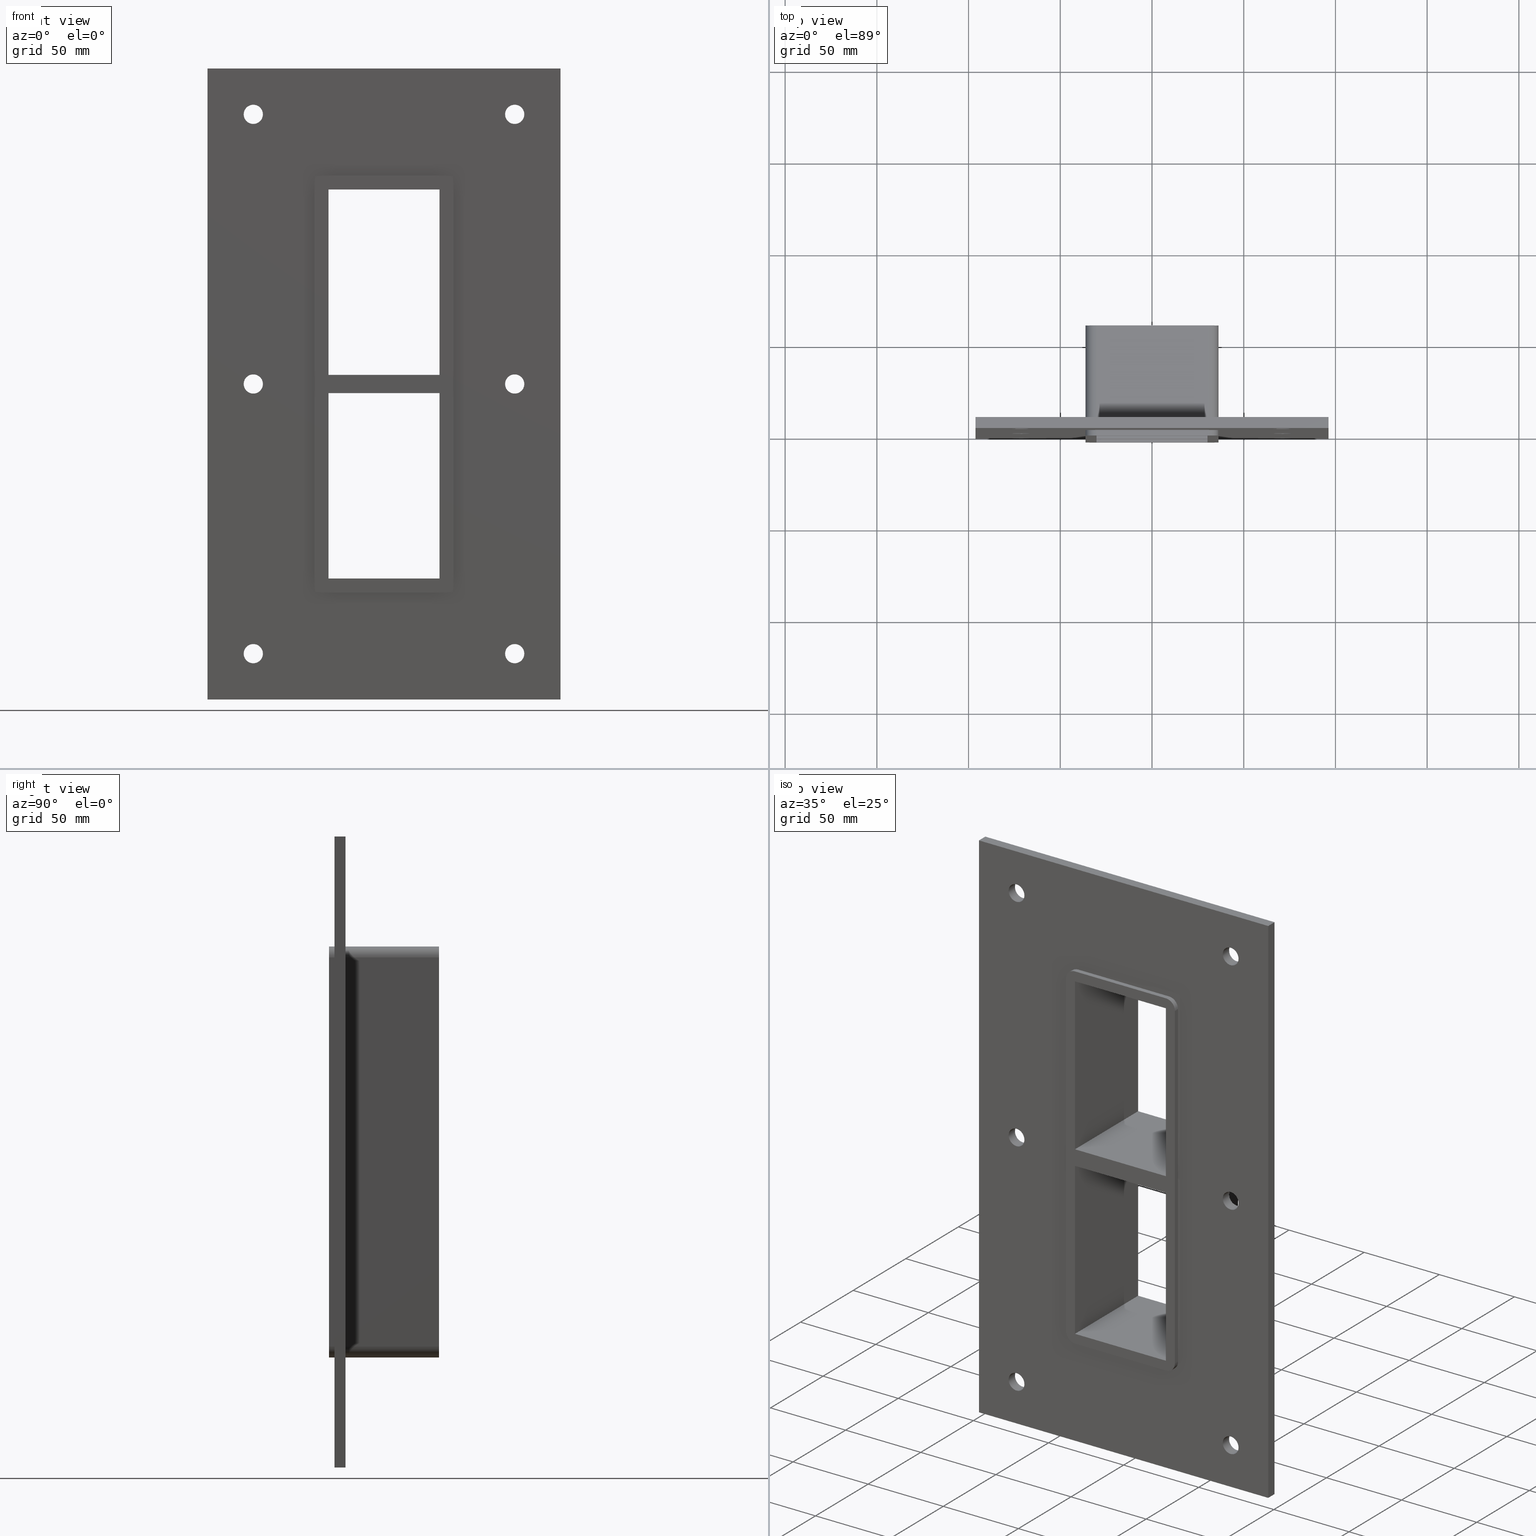
[diagram: canonical four-view strip — front | top / right | iso, engineering-drawing reading convention]
A machine part, canonical four-view strip (front | top / right | iso — engineering-drawing reading convention). The complete STEP part file that produces these views, byte-faithful:
ISO-10303-21;
HEADER;
/****************************************************************
 * Generated by software with PDElib inside                    *
 * PDElib Version v51a, created Wed 11/30/2011                  *
 * ITI Transcendata (http://www.transcendata.com/)              *
 ****************************************************************/
FILE_DESCRIPTION((''),'2;1');
FILE_NAME('L:\\roxtec-se\\Projects\\Ongoing_Projects\\12403 Transit Designer\\Product-data\\Product Data\\Reviwed & Approved\\Review\\GH\\STEP\\GH1+1X1.stp','2015-02-20T10:52:43',('se-emikul'),(''),'Autodesk Inventor 2013','Autodesk Inventor 2013','');
FILE_SCHEMA(('AUTOMOTIVE_DESIGN { 1 0 10303 214 1 1 1 1 }'));
ENDSEC;
DATA;
#5=APPLICATION_CONTEXT('automotive design');
#6=APPLICATION_PROTOCOL_DEFINITION('International Standard','automotive_design',2001,#5);
#7=PRODUCT_CONTEXT('',#5,'mechanical');
#8=PRODUCT('GH1+1X1','GH1+1X1',$,(#7));
#9=PRODUCT_RELATED_PRODUCT_CATEGORY('part',$,(#8));
#10=PRODUCT_DEFINITION_FORMATION('',$,#8);
#11=PRODUCT_DEFINITION_CONTEXT('part definition',#5,'design');
#12=PRODUCT_DEFINITION('',$,#10,#11);
#18=(NAMED_UNIT(*)PLANE_ANGLE_UNIT()SI_UNIT($,.RADIAN.));
#19=DIMENSIONAL_EXPONENTS(0.0,0.0,0.0,0.0,0.0,0.0,0.0);
#20=PLANE_ANGLE_MEASURE_WITH_UNIT(PLANE_ANGLE_MEASURE(0.0174532925),#18);
#24=(CONVERSION_BASED_UNIT('DEGREE',#20)NAMED_UNIT(#19)PLANE_ANGLE_UNIT());
#28=(NAMED_UNIT(*)SI_UNIT($,.STERADIAN.)SOLID_ANGLE_UNIT());
#32=(LENGTH_UNIT()NAMED_UNIT(*)SI_UNIT(.MILLI.,.METRE.));
#34=UNCERTAINTY_MEASURE_WITH_UNIT(LENGTH_MEASURE(0.01),#32,'DISTANCE_ACCURACY_VALUE','');
#36=(GEOMETRIC_REPRESENTATION_CONTEXT(3)GLOBAL_UNCERTAINTY_ASSIGNED_CONTEXT((#34))GLOBAL_UNIT_ASSIGNED_CONTEXT((#24,#28,#32))REPRESENTATION_CONTEXT('None','None'));
#37=AXIS2_PLACEMENT_3D('',#38,#39,#40);
#38=CARTESIAN_POINT('',(0.0,0.0,0.0));
#39=DIRECTION('',(0.0,0.0,1.0));
#40=DIRECTION('',(1.0,0.0,0.0));
#41=SHAPE_REPRESENTATION('',(#37),#36);
#42=PRODUCT_DEFINITION_SHAPE('','',#12);
#43=SHAPE_DEFINITION_REPRESENTATION(#42,#41);
#49=(NAMED_UNIT(*)PLANE_ANGLE_UNIT()SI_UNIT($,.RADIAN.));
#50=DIMENSIONAL_EXPONENTS(0.0,0.0,0.0,0.0,0.0,0.0,0.0);
#51=PLANE_ANGLE_MEASURE_WITH_UNIT(PLANE_ANGLE_MEASURE(0.0174532925),#49);
#55=(CONVERSION_BASED_UNIT('DEGREE',#51)NAMED_UNIT(#50)PLANE_ANGLE_UNIT());
#59=(NAMED_UNIT(*)SI_UNIT($,.STERADIAN.)SOLID_ANGLE_UNIT());
#63=(LENGTH_UNIT()NAMED_UNIT(*)SI_UNIT(.MILLI.,.METRE.));
#65=UNCERTAINTY_MEASURE_WITH_UNIT(LENGTH_MEASURE(0.000001),#63,'DISTANCE_ACCURACY_VALUE','');
#67=(GEOMETRIC_REPRESENTATION_CONTEXT(3)GLOBAL_UNCERTAINTY_ASSIGNED_CONTEXT((#65))GLOBAL_UNIT_ASSIGNED_CONTEXT((#55,#59,#63))REPRESENTATION_CONTEXT('','3D'));
#68=CARTESIAN_POINT('',(-71.250000000000071,398.73832271302933,-147.0));
#69=DIRECTION('',(0.0,-1.0,0.0));
#70=DIRECTION('',(1.0,0.0,0.0));
#71=AXIS2_PLACEMENT_3D('',#68,#69,#70);
#72=CYLINDRICAL_SURFACE('',#71,5.25);
#73=CARTESIAN_POINT('',(-76.500000000000071,6.000000000000014,-147.0));
#74=VERTEX_POINT('',#73);
#75=CARTESIAN_POINT('',(-71.250000000000071,6.000000000000014,-147.0));
#76=DIRECTION('',(0.0,-1.0,0.0));
#77=DIRECTION('',(1.0,0.0,0.0));
#78=AXIS2_PLACEMENT_3D('',#75,#76,#77);
#79=CIRCLE('',#78,5.25);
#80=EDGE_CURVE('',#74,#74,#79,.T.);
#81=ORIENTED_EDGE('',*,*,#80,.F.);
#82=EDGE_LOOP('',(#81));
#83=FACE_OUTER_BOUND('',#82,.T.);
#84=CARTESIAN_POINT('',(-66.000000000000071,0.0,-147.0));
#85=VERTEX_POINT('',#84);
#86=CARTESIAN_POINT('',(-71.250000000000071,0.0,-147.0));
#87=DIRECTION('',(0.0,1.0,0.0));
#88=DIRECTION('',(1.0,0.0,0.0));
#89=AXIS2_PLACEMENT_3D('',#86,#87,#88);
#90=CIRCLE('',#89,5.25);
#91=EDGE_CURVE('',#85,#85,#90,.T.);
#92=ORIENTED_EDGE('',*,*,#91,.F.);
#93=EDGE_LOOP('',(#92));
#94=FACE_BOUND('',#93,.T.);
#95=ADVANCED_FACE('',(#83,#94),#72,.F.);
#96=CARTESIAN_POINT('',(71.249999999999929,398.73832271302933,1.776357E-014));
#97=DIRECTION('',(0.0,-1.0,0.0));
#98=DIRECTION('',(1.0,0.0,0.0));
#99=AXIS2_PLACEMENT_3D('',#96,#97,#98);
#100=CYLINDRICAL_SURFACE('',#99,5.25);
#101=CARTESIAN_POINT('',(65.999999999999929,6.000000000000014,1.776357E-014));
#102=VERTEX_POINT('',#101);
#103=CARTESIAN_POINT('',(71.249999999999929,6.000000000000014,1.776357E-014));
#104=DIRECTION('',(0.0,-1.0,0.0));
#105=DIRECTION('',(1.0,0.0,0.0));
#106=AXIS2_PLACEMENT_3D('',#103,#104,#105);
#107=CIRCLE('',#106,5.25);
#108=EDGE_CURVE('',#102,#102,#107,.T.);
#109=ORIENTED_EDGE('',*,*,#108,.F.);
#110=EDGE_LOOP('',(#109));
#111=FACE_OUTER_BOUND('',#110,.T.);
#112=CARTESIAN_POINT('',(76.499999999999929,0.0,1.776357E-014));
#113=VERTEX_POINT('',#112);
#114=CARTESIAN_POINT('',(71.249999999999929,0.0,1.776357E-014));
#115=DIRECTION('',(0.0,1.0,0.0));
#116=DIRECTION('',(1.0,0.0,0.0));
#117=AXIS2_PLACEMENT_3D('',#114,#115,#116);
#118=CIRCLE('',#117,5.25);
#119=EDGE_CURVE('',#113,#113,#118,.T.);
#120=ORIENTED_EDGE('',*,*,#119,.F.);
#121=EDGE_LOOP('',(#120));
#122=FACE_BOUND('',#121,.T.);
#123=ADVANCED_FACE('',(#111,#122),#100,.F.);
#124=CARTESIAN_POINT('',(-71.250000000000071,398.73832271302933,1.776357E-014));
#125=DIRECTION('',(0.0,-1.0,0.0));
#126=DIRECTION('',(1.0,0.0,0.0));
#127=AXIS2_PLACEMENT_3D('',#124,#125,#126);
#128=CYLINDRICAL_SURFACE('',#127,5.25);
#129=CARTESIAN_POINT('',(-76.500000000000071,6.000000000000014,1.776357E-014));
#130=VERTEX_POINT('',#129);
#131=CARTESIAN_POINT('',(-71.250000000000071,6.000000000000014,1.776357E-014));
#132=DIRECTION('',(0.0,-1.0,0.0));
#133=DIRECTION('',(1.0,0.0,0.0));
#134=AXIS2_PLACEMENT_3D('',#131,#132,#133);
#135=CIRCLE('',#134,5.25);
#136=EDGE_CURVE('',#130,#130,#135,.T.);
#137=ORIENTED_EDGE('',*,*,#136,.F.);
#138=EDGE_LOOP('',(#137));
#139=FACE_OUTER_BOUND('',#138,.T.);
#140=CARTESIAN_POINT('',(-66.000000000000071,0.0,1.776357E-014));
#141=VERTEX_POINT('',#140);
#142=CARTESIAN_POINT('',(-71.250000000000071,0.0,1.776357E-014));
#143=DIRECTION('',(0.0,1.0,0.0));
#144=DIRECTION('',(1.0,0.0,0.0));
#145=AXIS2_PLACEMENT_3D('',#142,#143,#144);
#146=CIRCLE('',#145,5.25);
#147=EDGE_CURVE('',#141,#141,#146,.T.);
#148=ORIENTED_EDGE('',*,*,#147,.F.);
#149=EDGE_LOOP('',(#148));
#150=FACE_BOUND('',#149,.T.);
#151=ADVANCED_FACE('',(#139,#150),#128,.F.);
#152=CARTESIAN_POINT('',(71.249999999999929,398.73832271302933,-147.0));
#153=DIRECTION('',(0.0,-1.0,0.0));
#154=DIRECTION('',(1.0,0.0,0.0));
#155=AXIS2_PLACEMENT_3D('',#152,#153,#154);
#156=CYLINDRICAL_SURFACE('',#155,5.25);
#157=CARTESIAN_POINT('',(65.999999999999929,6.000000000000014,-147.0));
#158=VERTEX_POINT('',#157);
#159=CARTESIAN_POINT('',(71.249999999999929,6.000000000000014,-147.0));
#160=DIRECTION('',(0.0,-1.0,0.0));
#161=DIRECTION('',(1.0,0.0,0.0));
#162=AXIS2_PLACEMENT_3D('',#159,#160,#161);
#163=CIRCLE('',#162,5.25);
#164=EDGE_CURVE('',#158,#158,#163,.T.);
#165=ORIENTED_EDGE('',*,*,#164,.F.);
#166=EDGE_LOOP('',(#165));
#167=FACE_OUTER_BOUND('',#166,.T.);
#168=CARTESIAN_POINT('',(76.499999999999929,0.0,-147.0));
#169=VERTEX_POINT('',#168);
#170=CARTESIAN_POINT('',(71.249999999999929,0.0,-147.0));
#171=DIRECTION('',(0.0,1.0,0.0));
#172=DIRECTION('',(1.0,0.0,0.0));
#173=AXIS2_PLACEMENT_3D('',#170,#171,#172);
#174=CIRCLE('',#173,5.25);
#175=EDGE_CURVE('',#169,#169,#174,.T.);
#176=ORIENTED_EDGE('',*,*,#175,.F.);
#177=EDGE_LOOP('',(#176));
#178=FACE_BOUND('',#177,.T.);
#179=ADVANCED_FACE('',(#167,#178),#156,.F.);
#180=CARTESIAN_POINT('',(-71.250000000000071,398.73832271302933,147.00000000000003));
#181=DIRECTION('',(0.0,-1.0,0.0));
#182=DIRECTION('',(1.0,0.0,0.0));
#183=AXIS2_PLACEMENT_3D('',#180,#181,#182);
#184=CYLINDRICAL_SURFACE('',#183,5.25);
#185=CARTESIAN_POINT('',(-76.500000000000071,6.000000000000014,147.00000000000003));
#186=VERTEX_POINT('',#185);
#187=CARTESIAN_POINT('',(-71.250000000000071,6.000000000000014,147.00000000000003));
#188=DIRECTION('',(0.0,-1.0,0.0));
#189=DIRECTION('',(1.0,0.0,0.0));
#190=AXIS2_PLACEMENT_3D('',#187,#188,#189);
#191=CIRCLE('',#190,5.25);
#192=EDGE_CURVE('',#186,#186,#191,.T.);
#193=ORIENTED_EDGE('',*,*,#192,.F.);
#194=EDGE_LOOP('',(#193));
#195=FACE_OUTER_BOUND('',#194,.T.);
#196=CARTESIAN_POINT('',(-66.000000000000071,0.0,147.00000000000003));
#197=VERTEX_POINT('',#196);
#198=CARTESIAN_POINT('',(-71.250000000000071,0.0,147.00000000000003));
#199=DIRECTION('',(0.0,1.0,0.0));
#200=DIRECTION('',(1.0,0.0,0.0));
#201=AXIS2_PLACEMENT_3D('',#198,#199,#200);
#202=CIRCLE('',#201,5.25);
#203=EDGE_CURVE('',#197,#197,#202,.T.);
#204=ORIENTED_EDGE('',*,*,#203,.F.);
#205=EDGE_LOOP('',(#204));
#206=FACE_BOUND('',#205,.T.);
#207=ADVANCED_FACE('',(#195,#206),#184,.F.);
#208=CARTESIAN_POINT('',(71.249999999999929,398.73832271302933,147.00000000000003));
#209=DIRECTION('',(0.0,-1.0,0.0));
#210=DIRECTION('',(1.0,0.0,0.0));
#211=AXIS2_PLACEMENT_3D('',#208,#209,#210);
#212=CYLINDRICAL_SURFACE('',#211,5.25);
#213=CARTESIAN_POINT('',(65.999999999999929,6.000000000000014,147.00000000000003));
#214=VERTEX_POINT('',#213);
#215=CARTESIAN_POINT('',(71.249999999999929,6.000000000000014,147.00000000000003));
#216=DIRECTION('',(0.0,-1.0,0.0));
#217=DIRECTION('',(1.0,0.0,0.0));
#218=AXIS2_PLACEMENT_3D('',#215,#216,#217);
#219=CIRCLE('',#218,5.25);
#220=EDGE_CURVE('',#214,#214,#219,.T.);
#221=ORIENTED_EDGE('',*,*,#220,.F.);
#222=EDGE_LOOP('',(#221));
#223=FACE_OUTER_BOUND('',#222,.T.);
#224=CARTESIAN_POINT('',(76.499999999999929,0.0,147.00000000000003));
#225=VERTEX_POINT('',#224);
#226=CARTESIAN_POINT('',(71.249999999999929,0.0,147.00000000000003));
#227=DIRECTION('',(0.0,1.0,0.0));
#228=DIRECTION('',(1.0,0.0,0.0));
#229=AXIS2_PLACEMENT_3D('',#226,#227,#228);
#230=CIRCLE('',#229,5.25);
#231=EDGE_CURVE('',#225,#225,#230,.T.);
#232=ORIENTED_EDGE('',*,*,#231,.F.);
#233=EDGE_LOOP('',(#232));
#234=FACE_BOUND('',#233,.T.);
#235=ADVANCED_FACE('',(#223,#234),#212,.F.);
#236=CARTESIAN_POINT('',(30.249999999996362,-3.0,-5.000000000010836));
#237=DIRECTION('',(0.0,0.0,-1.0));
#238=DIRECTION('',(-1.0,0.0,0.0));
#239=AXIS2_PLACEMENT_3D('',#236,#237,#238);
#240=PLANE('',#239);
#241=CARTESIAN_POINT('',(30.249999999996362,-3.0,-5.000000000010836));
#242=VERTEX_POINT('',#241);
#243=CARTESIAN_POINT('',(-30.249999999997055,-3.0,-5.000000000011369));
#244=VERTEX_POINT('',#243);
#245=CARTESIAN_POINT('',(30.249999999996362,-3.0,-5.000000000010836));
#246=DIRECTION('',(-1.0,0.0,0.0));
#247=VECTOR('',#246,60.49999999999342);
#248=LINE('',#245,#247);
#249=EDGE_CURVE('',#242,#244,#248,.T.);
#250=ORIENTED_EDGE('',*,*,#249,.T.);
#251=CARTESIAN_POINT('',(-30.249999999997055,57.0,-5.000000000011369));
#252=VERTEX_POINT('',#251);
#253=CARTESIAN_POINT('',(-30.249999999999986,57.000000000000007,-5.000000000011369));
#254=DIRECTION('',(0.0,-1.0,0.0));
#255=VECTOR('',#254,60.000000000000007);
#256=LINE('',#253,#255);
#257=EDGE_CURVE('',#252,#244,#256,.T.);
#258=ORIENTED_EDGE('',*,*,#257,.F.);
#259=CARTESIAN_POINT('',(30.249999999996362,57.0,-5.000000000010836));
#260=VERTEX_POINT('',#259);
#261=CARTESIAN_POINT('',(30.249999999996362,57.0,-5.000000000010836));
#262=DIRECTION('',(-1.0,0.0,0.0));
#263=VECTOR('',#262,60.49999999999342);
#264=LINE('',#261,#263);
#265=EDGE_CURVE('',#260,#252,#264,.T.);
#266=ORIENTED_EDGE('',*,*,#265,.F.);
#267=CARTESIAN_POINT('',(30.249999999999986,-3.0,-5.000000000010836));
#268=DIRECTION('',(0.0,1.0,0.0));
#269=VECTOR('',#268,60.000000000000007);
#270=LINE('',#267,#269);
#271=EDGE_CURVE('',#242,#260,#270,.T.);
#272=ORIENTED_EDGE('',*,*,#271,.F.);
#273=EDGE_LOOP('',(#250,#258,#266,#272));
#274=FACE_OUTER_BOUND('',#273,.T.);
#275=ADVANCED_FACE('',(#274),#240,.T.);
#276=CARTESIAN_POINT('',(-30.249999999997055,-3.0,5.0));
#277=DIRECTION('',(0.0,0.0,1.0));
#278=DIRECTION('',(1.0,0.0,0.0));
#279=AXIS2_PLACEMENT_3D('',#276,#277,#278);
#280=PLANE('',#279);
#281=CARTESIAN_POINT('',(-30.249999999997055,-3.0,5.0));
#282=VERTEX_POINT('',#281);
#283=CARTESIAN_POINT('',(30.249999999999009,-3.0,5.0));
#284=VERTEX_POINT('',#283);
#285=CARTESIAN_POINT('',(-30.249999999997055,-3.0,5.0));
#286=DIRECTION('',(1.0,0.0,0.0));
#287=VECTOR('',#286,60.499999999996064);
#288=LINE('',#285,#287);
#289=EDGE_CURVE('',#282,#284,#288,.T.);
#290=ORIENTED_EDGE('',*,*,#289,.T.);
#291=CARTESIAN_POINT('',(30.249999999999009,57.0,5.0));
#292=VERTEX_POINT('',#291);
#293=CARTESIAN_POINT('',(30.249999999999986,57.000000000000007,5.0));
#294=DIRECTION('',(0.0,-1.0,0.0));
#295=VECTOR('',#294,60.000000000000007);
#296=LINE('',#293,#295);
#297=EDGE_CURVE('',#292,#284,#296,.T.);
#298=ORIENTED_EDGE('',*,*,#297,.F.);
#299=CARTESIAN_POINT('',(-30.249999999997055,57.0,5.0));
#300=VERTEX_POINT('',#299);
#301=CARTESIAN_POINT('',(-30.249999999997055,57.0,5.0));
#302=DIRECTION('',(1.0,0.0,0.0));
#303=VECTOR('',#302,60.499999999996064);
#304=LINE('',#301,#303);
#305=EDGE_CURVE('',#300,#292,#304,.T.);
#306=ORIENTED_EDGE('',*,*,#305,.F.);
#307=CARTESIAN_POINT('',(-30.249999999999986,-3.0,5.0));
#308=DIRECTION('',(0.0,1.0,0.0));
#309=VECTOR('',#308,60.000000000000007);
#310=LINE('',#307,#309);
#311=EDGE_CURVE('',#282,#300,#310,.T.);
#312=ORIENTED_EDGE('',*,*,#311,.F.);
#313=EDGE_LOOP('',(#290,#298,#306,#312));
#314=FACE_OUTER_BOUND('',#313,.T.);
#315=ADVANCED_FACE('',(#314),#280,.T.);
#316=CARTESIAN_POINT('',(-30.249999999999986,0.0,-106.00000000000001));
#317=DIRECTION('',(-1.0,0.0,0.0));
#318=DIRECTION('',(0.0,0.0,1.0));
#319=AXIS2_PLACEMENT_3D('',#316,#317,#318);
#320=PLANE('',#319);
#321=ORIENTED_EDGE('',*,*,#311,.T.);
#322=CARTESIAN_POINT('',(-30.249999999999986,57.0,105.99999999999997));
#323=VERTEX_POINT('',#322);
#324=CARTESIAN_POINT('',(-30.249999999999986,57.0,106.0));
#325=DIRECTION('',(0.0,0.0,-1.0));
#326=VECTOR('',#325,101.0);
#327=LINE('',#324,#326);
#328=EDGE_CURVE('',#323,#300,#327,.T.);
#329=ORIENTED_EDGE('',*,*,#328,.F.);
#330=CARTESIAN_POINT('',(-30.249999999999986,-3.0,105.99999999999997));
#331=VERTEX_POINT('',#330);
#332=CARTESIAN_POINT('',(-30.249999999999986,-3.0,105.99999999999997));
#333=DIRECTION('',(0.0,1.0,0.0));
#334=VECTOR('',#333,60.0);
#335=LINE('',#332,#334);
#336=EDGE_CURVE('',#331,#323,#335,.T.);
#337=ORIENTED_EDGE('',*,*,#336,.F.);
#338=CARTESIAN_POINT('',(-30.249999999999986,-3.0,5.0));
#339=DIRECTION('',(0.0,0.0,1.0));
#340=VECTOR('',#339,101.0);
#341=LINE('',#338,#340);
#342=EDGE_CURVE('',#282,#331,#341,.T.);
#343=ORIENTED_EDGE('',*,*,#342,.F.);
#344=EDGE_LOOP('',(#321,#329,#337,#343));
#345=FACE_OUTER_BOUND('',#344,.T.);
#346=ADVANCED_FACE('',(#345),#320,.F.);
#347=CARTESIAN_POINT('',(30.249999999999986,0.0,105.99999999999994));
#348=DIRECTION('',(1.0,0.0,0.0));
#349=DIRECTION('',(0.0,0.0,-1.0));
#350=AXIS2_PLACEMENT_3D('',#347,#348,#349);
#351=PLANE('',#350);
#352=ORIENTED_EDGE('',*,*,#271,.T.);
#353=CARTESIAN_POINT('',(30.249999999999986,57.0,-106.00000000000001));
#354=VERTEX_POINT('',#353);
#355=CARTESIAN_POINT('',(30.249999999999986,57.0,-106.00000000000003));
#356=DIRECTION('',(0.0,0.0,1.0));
#357=VECTOR('',#356,100.9999999999892);
#358=LINE('',#355,#357);
#359=EDGE_CURVE('',#354,#260,#358,.T.);
#360=ORIENTED_EDGE('',*,*,#359,.F.);
#361=CARTESIAN_POINT('',(30.249999999999986,-3.0,-106.00000000000001));
#362=VERTEX_POINT('',#361);
#363=CARTESIAN_POINT('',(30.249999999999986,56.999999999999993,-106.00000000000001));
#364=DIRECTION('',(0.0,-1.0,0.0));
#365=VECTOR('',#364,59.999999999999993);
#366=LINE('',#363,#365);
#367=EDGE_CURVE('',#354,#362,#366,.T.);
#368=ORIENTED_EDGE('',*,*,#367,.T.);
#369=CARTESIAN_POINT('',(30.249999999999986,-3.0,-5.000000000010836));
#370=DIRECTION('',(0.0,0.0,-1.0));
#371=VECTOR('',#370,100.9999999999892);
#372=LINE('',#369,#371);
#373=EDGE_CURVE('',#242,#362,#372,.T.);
#374=ORIENTED_EDGE('',*,*,#373,.F.);
#375=EDGE_LOOP('',(#352,#360,#368,#374));
#376=FACE_OUTER_BOUND('',#375,.T.);
#377=ADVANCED_FACE('',(#376),#351,.F.);
#378=CARTESIAN_POINT('',(30.249999999999986,0.0,105.99999999999994));
#379=DIRECTION('',(1.0,0.0,0.0));
#380=DIRECTION('',(0.0,0.0,-1.0));
#381=AXIS2_PLACEMENT_3D('',#378,#379,#380);
#382=PLANE('',#381);
#383=ORIENTED_EDGE('',*,*,#297,.T.);
#384=CARTESIAN_POINT('',(30.249999999999986,-3.0,105.99999999999997));
#385=VERTEX_POINT('',#384);
#386=CARTESIAN_POINT('',(30.249999999999986,-3.0,105.99999999999997));
#387=DIRECTION('',(0.0,0.0,-1.0));
#388=VECTOR('',#387,100.99999999999997);
#389=LINE('',#386,#388);
#390=EDGE_CURVE('',#385,#284,#389,.T.);
#391=ORIENTED_EDGE('',*,*,#390,.F.);
#392=CARTESIAN_POINT('',(30.249999999999986,57.0,105.99999999999997));
#393=VERTEX_POINT('',#392);
#394=CARTESIAN_POINT('',(30.249999999999986,-3.0,105.99999999999997));
#395=DIRECTION('',(0.0,1.0,0.0));
#396=VECTOR('',#395,60.0);
#397=LINE('',#394,#396);
#398=EDGE_CURVE('',#385,#393,#397,.T.);
#399=ORIENTED_EDGE('',*,*,#398,.T.);
#400=CARTESIAN_POINT('',(30.249999999999986,57.0,5.0));
#401=DIRECTION('',(0.0,0.0,1.0));
#402=VECTOR('',#401,100.99999999999997);
#403=LINE('',#400,#402);
#404=EDGE_CURVE('',#292,#393,#403,.T.);
#405=ORIENTED_EDGE('',*,*,#404,.F.);
#406=EDGE_LOOP('',(#383,#391,#399,#405));
#407=FACE_OUTER_BOUND('',#406,.T.);
#408=ADVANCED_FACE('',(#407),#382,.F.);
#409=CARTESIAN_POINT('',(7.946424E-015,6.000000000000001,-1.536309E-014));
#410=DIRECTION('',(0.0,1.0,0.0));
#411=DIRECTION('',(0.0,0.0,1.0));
#412=AXIS2_PLACEMENT_3D('',#409,#410,#411);
#413=PLANE('',#412);
#414=CARTESIAN_POINT('',(-96.249999999999972,6.000000000000001,171.99999999999994));
#415=VERTEX_POINT('',#414);
#416=CARTESIAN_POINT('',(96.249999999999972,6.000000000000001,171.99999999999994));
#417=VERTEX_POINT('',#416);
#418=CARTESIAN_POINT('',(-96.249999999999972,6.000000000000001,171.99999999999994));
#419=DIRECTION('',(1.0,0.0,0.0));
#420=VECTOR('',#419,192.49999999999994);
#421=LINE('',#418,#420);
#422=EDGE_CURVE('',#415,#417,#421,.T.);
#423=ORIENTED_EDGE('',*,*,#422,.T.);
#424=CARTESIAN_POINT('',(96.249999999999972,6.000000000000001,-171.99999999999994));
#425=VERTEX_POINT('',#424);
#426=CARTESIAN_POINT('',(96.249999999999986,6.000000000000001,171.99999999999994));
#427=DIRECTION('',(0.0,0.0,-1.0));
#428=VECTOR('',#427,343.99999999999989);
#429=LINE('',#426,#428);
#430=EDGE_CURVE('',#417,#425,#429,.T.);
#431=ORIENTED_EDGE('',*,*,#430,.T.);
#432=CARTESIAN_POINT('',(-96.249999999999972,6.000000000000001,-171.99999999999994));
#433=VERTEX_POINT('',#432);
#434=CARTESIAN_POINT('',(96.249999999999986,6.000000000000001,-172.0));
#435=DIRECTION('',(-1.0,0.0,0.0));
#436=VECTOR('',#435,192.49999999999994);
#437=LINE('',#434,#436);
#438=EDGE_CURVE('',#425,#433,#437,.T.);
#439=ORIENTED_EDGE('',*,*,#438,.T.);
#440=CARTESIAN_POINT('',(-96.249999999999972,6.000000000000001,-172.0));
#441=DIRECTION('',(0.0,0.0,1.0));
#442=VECTOR('',#441,343.99999999999989);
#443=LINE('',#440,#442);
#444=EDGE_CURVE('',#433,#415,#443,.T.);
#445=ORIENTED_EDGE('',*,*,#444,.T.);
#446=EDGE_LOOP('',(#423,#431,#439,#445));
#447=FACE_OUTER_BOUND('',#446,.T.);
#448=ORIENTED_EDGE('',*,*,#80,.T.);
#449=EDGE_LOOP('',(#448));
#450=FACE_BOUND('',#449,.T.);
#451=ORIENTED_EDGE('',*,*,#108,.T.);
#452=EDGE_LOOP('',(#451));
#453=FACE_BOUND('',#452,.T.);
#454=ORIENTED_EDGE('',*,*,#136,.T.);
#455=EDGE_LOOP('',(#454));
#456=FACE_BOUND('',#455,.T.);
#457=ORIENTED_EDGE('',*,*,#164,.T.);
#458=EDGE_LOOP('',(#457));
#459=FACE_BOUND('',#458,.T.);
#460=ORIENTED_EDGE('',*,*,#192,.T.);
#461=EDGE_LOOP('',(#460));
#462=FACE_BOUND('',#461,.T.);
#463=ORIENTED_EDGE('',*,*,#220,.T.);
#464=EDGE_LOOP('',(#463));
#465=FACE_BOUND('',#464,.T.);
#466=CARTESIAN_POINT('',(-36.25,6.000000000000001,106.00000000000001));
#467=VERTEX_POINT('',#466);
#468=CARTESIAN_POINT('',(-30.250000000000004,6.000000000000001,112.00000000000003));
#469=VERTEX_POINT('',#468);
#470=CARTESIAN_POINT('',(-30.250000000000004,6.000000000000001,106.00000000000001));
#471=DIRECTION('',(0.0,1.0,0.0));
#472=DIRECTION('',(-0.707106781186546,0.0,0.707106781186549));
#473=AXIS2_PLACEMENT_3D('',#470,#471,#472);
#474=CIRCLE('',#473,6.000000000000001);
#475=EDGE_CURVE('',#467,#469,#474,.T.);
#476=ORIENTED_EDGE('',*,*,#475,.F.);
#477=CARTESIAN_POINT('',(-36.25,6.000000000000001,-106.00000000000001));
#478=VERTEX_POINT('',#477);
#479=CARTESIAN_POINT('',(-36.25,6.000000000000001,-106.00000000000001));
#480=DIRECTION('',(0.0,0.0,1.0));
#481=VECTOR('',#480,212.0);
#482=LINE('',#479,#481);
#483=EDGE_CURVE('',#478,#467,#482,.T.);
#484=ORIENTED_EDGE('',*,*,#483,.F.);
#485=CARTESIAN_POINT('',(-30.250000000000004,6.000000000000001,-112.00000000000003));
#486=VERTEX_POINT('',#485);
#487=CARTESIAN_POINT('',(-30.250000000000004,6.000000000000001,-106.00000000000001));
#488=DIRECTION('',(0.0,1.0,0.0));
#489=DIRECTION('',(-0.707106781186546,0.0,-0.707106781186549));
#490=AXIS2_PLACEMENT_3D('',#487,#488,#489);
#491=CIRCLE('',#490,6.000000000000001);
#492=EDGE_CURVE('',#486,#478,#491,.T.);
#493=ORIENTED_EDGE('',*,*,#492,.F.);
#494=CARTESIAN_POINT('',(30.250000000000004,6.000000000000001,-112.00000000000003));
#495=VERTEX_POINT('',#494);
#496=CARTESIAN_POINT('',(30.250000000000004,6.000000000000001,-112.00000000000003));
#497=DIRECTION('',(-1.0,0.0,0.0));
#498=VECTOR('',#497,60.5);
#499=LINE('',#496,#498);
#500=EDGE_CURVE('',#495,#486,#499,.T.);
#501=ORIENTED_EDGE('',*,*,#500,.F.);
#502=CARTESIAN_POINT('',(36.25,6.000000000000001,-106.00000000000001));
#503=VERTEX_POINT('',#502);
#504=CARTESIAN_POINT('',(30.250000000000004,6.000000000000001,-106.00000000000001));
#505=DIRECTION('',(0.0,1.0,0.0));
#506=DIRECTION('',(0.707106781186546,0.0,-0.707106781186549));
#507=AXIS2_PLACEMENT_3D('',#504,#505,#506);
#508=CIRCLE('',#507,6.000000000000001);
#509=EDGE_CURVE('',#503,#495,#508,.T.);
#510=ORIENTED_EDGE('',*,*,#509,.F.);
#511=CARTESIAN_POINT('',(36.25,6.000000000000001,106.00000000000003));
#512=VERTEX_POINT('',#511);
#513=CARTESIAN_POINT('',(36.25,6.000000000000001,106.00000000000003));
#514=DIRECTION('',(0.0,0.0,-1.0));
#515=VECTOR('',#514,212.00000000000006);
#516=LINE('',#513,#515);
#517=EDGE_CURVE('',#512,#503,#516,.T.);
#518=ORIENTED_EDGE('',*,*,#517,.F.);
#519=CARTESIAN_POINT('',(30.250000000000004,6.000000000000001,112.00000000000003));
#520=VERTEX_POINT('',#519);
#521=CARTESIAN_POINT('',(30.250000000000004,6.000000000000001,106.00000000000003));
#522=DIRECTION('',(0.0,1.0,0.0));
#523=DIRECTION('',(0.707106781186548,0.0,0.707106781186547));
#524=AXIS2_PLACEMENT_3D('',#521,#522,#523);
#525=CIRCLE('',#524,6.0);
#526=EDGE_CURVE('',#520,#512,#525,.T.);
#527=ORIENTED_EDGE('',*,*,#526,.F.);
#528=CARTESIAN_POINT('',(-30.250000000000004,6.000000000000001,112.00000000000003));
#529=DIRECTION('',(1.0,0.0,0.0));
#530=VECTOR('',#529,60.500000000000007);
#531=LINE('',#528,#530);
#532=EDGE_CURVE('',#469,#520,#531,.T.);
#533=ORIENTED_EDGE('',*,*,#532,.F.);
#534=EDGE_LOOP('',(#476,#484,#493,#501,#510,#518,#527,#533));
#535=FACE_BOUND('',#534,.T.);
#536=ADVANCED_FACE('',(#447,#450,#453,#456,#459,#462,#465,#535),#413,.T.);
#537=CARTESIAN_POINT('',(7.946424E-015,0.0,-1.536309E-014));
#538=DIRECTION('',(0.0,1.0,0.0));
#539=DIRECTION('',(0.0,0.0,1.0));
#540=AXIS2_PLACEMENT_3D('',#537,#538,#539);
#541=PLANE('',#540);
#542=CARTESIAN_POINT('',(-96.249999999999972,0.0,171.99999999999994));
#543=VERTEX_POINT('',#542);
#544=CARTESIAN_POINT('',(96.249999999999986,0.0,171.99999999999994));
#545=VERTEX_POINT('',#544);
#546=CARTESIAN_POINT('',(-96.249999999999972,0.0,171.99999999999994));
#547=DIRECTION('',(1.0,0.0,0.0));
#548=VECTOR('',#547,192.49999999999994);
#549=LINE('',#546,#548);
#550=EDGE_CURVE('',#543,#545,#549,.T.);
#551=ORIENTED_EDGE('',*,*,#550,.F.);
#552=CARTESIAN_POINT('',(-96.249999999999972,0.0,-172.0));
#553=VERTEX_POINT('',#552);
#554=CARTESIAN_POINT('',(-96.249999999999972,0.0,-172.0));
#555=DIRECTION('',(0.0,0.0,1.0));
#556=VECTOR('',#555,343.99999999999989);
#557=LINE('',#554,#556);
#558=EDGE_CURVE('',#553,#543,#557,.T.);
#559=ORIENTED_EDGE('',*,*,#558,.F.);
#560=CARTESIAN_POINT('',(96.249999999999986,0.0,-172.0));
#561=VERTEX_POINT('',#560);
#562=CARTESIAN_POINT('',(96.249999999999986,0.0,-172.0));
#563=DIRECTION('',(-1.0,0.0,0.0));
#564=VECTOR('',#563,192.49999999999994);
#565=LINE('',#562,#564);
#566=EDGE_CURVE('',#561,#553,#565,.T.);
#567=ORIENTED_EDGE('',*,*,#566,.F.);
#568=CARTESIAN_POINT('',(96.249999999999986,0.0,171.99999999999994));
#569=DIRECTION('',(0.0,0.0,-1.0));
#570=VECTOR('',#569,343.99999999999989);
#571=LINE('',#568,#570);
#572=EDGE_CURVE('',#545,#561,#571,.T.);
#573=ORIENTED_EDGE('',*,*,#572,.F.);
#574=EDGE_LOOP('',(#551,#559,#567,#573));
#575=FACE_OUTER_BOUND('',#574,.T.);
#576=ORIENTED_EDGE('',*,*,#91,.T.);
#577=EDGE_LOOP('',(#576));
#578=FACE_BOUND('',#577,.T.);
#579=ORIENTED_EDGE('',*,*,#119,.T.);
#580=EDGE_LOOP('',(#579));
#581=FACE_BOUND('',#580,.T.);
#582=ORIENTED_EDGE('',*,*,#147,.T.);
#583=EDGE_LOOP('',(#582));
#584=FACE_BOUND('',#583,.T.);
#585=ORIENTED_EDGE('',*,*,#175,.T.);
#586=EDGE_LOOP('',(#585));
#587=FACE_BOUND('',#586,.T.);
#588=ORIENTED_EDGE('',*,*,#203,.T.);
#589=EDGE_LOOP('',(#588));
#590=FACE_BOUND('',#589,.T.);
#591=ORIENTED_EDGE('',*,*,#231,.T.);
#592=EDGE_LOOP('',(#591));
#593=FACE_BOUND('',#592,.T.);
#594=CARTESIAN_POINT('',(-30.250000000000004,0.0,112.00000000000003));
#595=VERTEX_POINT('',#594);
#596=CARTESIAN_POINT('',(-36.25,0.0,106.00000000000001));
#597=VERTEX_POINT('',#596);
#598=CARTESIAN_POINT('',(-30.250000000000004,0.0,106.00000000000001));
#599=DIRECTION('',(0.0,-1.0,0.0));
#600=DIRECTION('',(-0.707106781186546,0.0,0.707106781186549));
#601=AXIS2_PLACEMENT_3D('',#598,#599,#600);
#602=CIRCLE('',#601,6.000000000000001);
#603=EDGE_CURVE('',#595,#597,#602,.T.);
#604=ORIENTED_EDGE('',*,*,#603,.F.);
#605=CARTESIAN_POINT('',(30.250000000000004,0.0,112.00000000000003));
#606=VERTEX_POINT('',#605);
#607=CARTESIAN_POINT('',(30.250000000000004,0.0,112.00000000000003));
#608=DIRECTION('',(-1.0,0.0,0.0));
#609=VECTOR('',#608,60.500000000000007);
#610=LINE('',#607,#609);
#611=EDGE_CURVE('',#606,#595,#610,.T.);
#612=ORIENTED_EDGE('',*,*,#611,.F.);
#613=CARTESIAN_POINT('',(36.25,0.0,106.00000000000003));
#614=VERTEX_POINT('',#613);
#615=CARTESIAN_POINT('',(30.250000000000004,0.0,106.00000000000003));
#616=DIRECTION('',(0.0,-1.0,0.0));
#617=DIRECTION('',(0.707106781186548,0.0,0.707106781186547));
#618=AXIS2_PLACEMENT_3D('',#615,#616,#617);
#619=CIRCLE('',#618,6.0);
#620=EDGE_CURVE('',#614,#606,#619,.T.);
#621=ORIENTED_EDGE('',*,*,#620,.F.);
#622=CARTESIAN_POINT('',(36.25,0.0,-106.00000000000001));
#623=VERTEX_POINT('',#622);
#624=CARTESIAN_POINT('',(36.25,0.0,-106.00000000000003));
#625=DIRECTION('',(0.0,0.0,1.0));
#626=VECTOR('',#625,212.00000000000006);
#627=LINE('',#624,#626);
#628=EDGE_CURVE('',#623,#614,#627,.T.);
#629=ORIENTED_EDGE('',*,*,#628,.F.);
#630=CARTESIAN_POINT('',(30.250000000000004,0.0,-112.00000000000003));
#631=VERTEX_POINT('',#630);
#632=CARTESIAN_POINT('',(30.250000000000004,0.0,-106.00000000000001));
#633=DIRECTION('',(0.0,-1.0,0.0));
#634=DIRECTION('',(0.707106781186546,0.0,-0.707106781186549));
#635=AXIS2_PLACEMENT_3D('',#632,#633,#634);
#636=CIRCLE('',#635,6.000000000000001);
#637=EDGE_CURVE('',#631,#623,#636,.T.);
#638=ORIENTED_EDGE('',*,*,#637,.F.);
#639=CARTESIAN_POINT('',(-30.250000000000004,0.0,-112.00000000000003));
#640=VERTEX_POINT('',#639);
#641=CARTESIAN_POINT('',(-30.249999999999996,0.0,-112.00000000000003));
#642=DIRECTION('',(1.0,0.0,0.0));
#643=VECTOR('',#642,60.5);
#644=LINE('',#641,#643);
#645=EDGE_CURVE('',#640,#631,#644,.T.);
#646=ORIENTED_EDGE('',*,*,#645,.F.);
#647=CARTESIAN_POINT('',(-36.25,0.0,-106.00000000000001));
#648=VERTEX_POINT('',#647);
#649=CARTESIAN_POINT('',(-30.250000000000004,0.0,-106.00000000000001));
#650=DIRECTION('',(0.0,-1.0,0.0));
#651=DIRECTION('',(-0.707106781186546,0.0,-0.707106781186549));
#652=AXIS2_PLACEMENT_3D('',#649,#650,#651);
#653=CIRCLE('',#652,6.000000000000001);
#654=EDGE_CURVE('',#648,#640,#653,.T.);
#655=ORIENTED_EDGE('',*,*,#654,.F.);
#656=CARTESIAN_POINT('',(-36.25,0.0,106.0));
#657=DIRECTION('',(0.0,0.0,-1.0));
#658=VECTOR('',#657,212.0);
#659=LINE('',#656,#658);
#660=EDGE_CURVE('',#597,#648,#659,.T.);
#661=ORIENTED_EDGE('',*,*,#660,.F.);
#662=EDGE_LOOP('',(#604,#612,#621,#629,#638,#646,#655,#661));
#663=FACE_BOUND('',#662,.T.);
#664=ADVANCED_FACE('',(#575,#578,#581,#584,#587,#590,#593,#663),#541,.F.);
#665=CARTESIAN_POINT('',(-96.249999999999972,0.0,-172.0));
#666=DIRECTION('',(-1.0,0.0,0.0));
#667=DIRECTION('',(0.0,0.0,1.0));
#668=AXIS2_PLACEMENT_3D('',#665,#666,#667);
#669=PLANE('',#668);
#670=ORIENTED_EDGE('',*,*,#558,.T.);
#671=CARTESIAN_POINT('',(-96.249999999999972,0.0,171.99999999999994));
#672=DIRECTION('',(0.0,1.0,0.0));
#673=VECTOR('',#672,6.000000000000001);
#674=LINE('',#671,#673);
#675=EDGE_CURVE('',#543,#415,#674,.T.);
#676=ORIENTED_EDGE('',*,*,#675,.T.);
#677=ORIENTED_EDGE('',*,*,#444,.F.);
#678=CARTESIAN_POINT('',(-96.249999999999972,0.0,-172.0));
#679=DIRECTION('',(0.0,1.0,0.0));
#680=VECTOR('',#679,6.000000000000001);
#681=LINE('',#678,#680);
#682=EDGE_CURVE('',#553,#433,#681,.T.);
#683=ORIENTED_EDGE('',*,*,#682,.F.);
#684=EDGE_LOOP('',(#670,#676,#677,#683));
#685=FACE_OUTER_BOUND('',#684,.T.);
#686=ADVANCED_FACE('',(#685),#669,.T.);
#687=CARTESIAN_POINT('',(96.249999999999986,0.0,-172.0));
#688=DIRECTION('',(0.0,0.0,-1.0));
#689=DIRECTION('',(-1.0,0.0,0.0));
#690=AXIS2_PLACEMENT_3D('',#687,#688,#689);
#691=PLANE('',#690);
#692=ORIENTED_EDGE('',*,*,#566,.T.);
#693=ORIENTED_EDGE('',*,*,#682,.T.);
#694=ORIENTED_EDGE('',*,*,#438,.F.);
#695=CARTESIAN_POINT('',(96.249999999999986,0.0,-172.0));
#696=DIRECTION('',(0.0,1.0,0.0));
#697=VECTOR('',#696,6.000000000000001);
#698=LINE('',#695,#697);
#699=EDGE_CURVE('',#561,#425,#698,.T.);
#700=ORIENTED_EDGE('',*,*,#699,.F.);
#701=EDGE_LOOP('',(#692,#693,#694,#700));
#702=FACE_OUTER_BOUND('',#701,.T.);
#703=ADVANCED_FACE('',(#702),#691,.T.);
#704=CARTESIAN_POINT('',(96.249999999999986,0.0,171.99999999999994));
#705=DIRECTION('',(1.0,0.0,0.0));
#706=DIRECTION('',(0.0,0.0,-1.0));
#707=AXIS2_PLACEMENT_3D('',#704,#705,#706);
#708=PLANE('',#707);
#709=ORIENTED_EDGE('',*,*,#572,.T.);
#710=ORIENTED_EDGE('',*,*,#699,.T.);
#711=ORIENTED_EDGE('',*,*,#430,.F.);
#712=CARTESIAN_POINT('',(96.249999999999986,0.0,171.99999999999994));
#713=DIRECTION('',(0.0,1.0,0.0));
#714=VECTOR('',#713,6.000000000000001);
#715=LINE('',#712,#714);
#716=EDGE_CURVE('',#545,#417,#715,.T.);
#717=ORIENTED_EDGE('',*,*,#716,.F.);
#718=EDGE_LOOP('',(#709,#710,#711,#717));
#719=FACE_OUTER_BOUND('',#718,.T.);
#720=ADVANCED_FACE('',(#719),#708,.T.);
#721=CARTESIAN_POINT('',(-96.249999999999972,0.0,171.99999999999994));
#722=DIRECTION('',(0.0,0.0,1.0));
#723=DIRECTION('',(1.0,0.0,0.0));
#724=AXIS2_PLACEMENT_3D('',#721,#722,#723);
#725=PLANE('',#724);
#726=ORIENTED_EDGE('',*,*,#550,.T.);
#727=ORIENTED_EDGE('',*,*,#716,.T.);
#728=ORIENTED_EDGE('',*,*,#422,.F.);
#729=ORIENTED_EDGE('',*,*,#675,.F.);
#730=EDGE_LOOP('',(#726,#727,#728,#729));
#731=FACE_OUTER_BOUND('',#730,.T.);
#732=ADVANCED_FACE('',(#731),#725,.T.);
#733=CARTESIAN_POINT('',(-30.249999999999986,0.0,-106.00000000000001));
#734=DIRECTION('',(-1.0,0.0,0.0));
#735=DIRECTION('',(0.0,0.0,1.0));
#736=AXIS2_PLACEMENT_3D('',#733,#734,#735);
#737=PLANE('',#736);
#738=ORIENTED_EDGE('',*,*,#257,.T.);
#739=CARTESIAN_POINT('',(-30.249999999999986,-3.0,-106.00000000000001));
#740=VERTEX_POINT('',#739);
#741=CARTESIAN_POINT('',(-30.249999999999986,-3.0,-106.00000000000001));
#742=DIRECTION('',(0.0,0.0,1.0));
#743=VECTOR('',#742,100.99999999998865);
#744=LINE('',#741,#743);
#745=EDGE_CURVE('',#740,#244,#744,.T.);
#746=ORIENTED_EDGE('',*,*,#745,.F.);
#747=CARTESIAN_POINT('',(-30.249999999999986,57.0,-106.00000000000001));
#748=VERTEX_POINT('',#747);
#749=CARTESIAN_POINT('',(-30.249999999999986,-3.0,-106.00000000000001));
#750=DIRECTION('',(0.0,1.0,0.0));
#751=VECTOR('',#750,60.0);
#752=LINE('',#749,#751);
#753=EDGE_CURVE('',#740,#748,#752,.T.);
#754=ORIENTED_EDGE('',*,*,#753,.T.);
#755=CARTESIAN_POINT('',(-30.249999999999986,57.0,-5.000000000011369));
#756=DIRECTION('',(0.0,0.0,-1.0));
#757=VECTOR('',#756,100.99999999998865);
#758=LINE('',#755,#757);
#759=EDGE_CURVE('',#252,#748,#758,.T.);
#760=ORIENTED_EDGE('',*,*,#759,.F.);
#761=EDGE_LOOP('',(#738,#746,#754,#760));
#762=FACE_OUTER_BOUND('',#761,.T.);
#763=ADVANCED_FACE('',(#762),#737,.F.);
#764=CARTESIAN_POINT('',(30.250000000000004,0.0,-106.00000000000001));
#765=DIRECTION('',(0.0,1.0,0.0));
#766=DIRECTION('',(0.707106781186546,0.0,-0.707106781186549));
#767=AXIS2_PLACEMENT_3D('',#764,#765,#766);
#768=CYLINDRICAL_SURFACE('',#767,6.000000000000001);
#769=ORIENTED_EDGE('',*,*,#637,.T.);
#770=CARTESIAN_POINT('',(36.25,-3.0,-106.00000000000001));
#771=VERTEX_POINT('',#770);
#772=CARTESIAN_POINT('',(36.25,0.0,-106.00000000000001));
#773=DIRECTION('',(0.0,-1.0,0.0));
#774=VECTOR('',#773,3.0);
#775=LINE('',#772,#774);
#776=EDGE_CURVE('',#623,#771,#775,.T.);
#777=ORIENTED_EDGE('',*,*,#776,.T.);
#778=CARTESIAN_POINT('',(30.250000000000004,-3.0,-112.00000000000003));
#779=VERTEX_POINT('',#778);
#780=CARTESIAN_POINT('',(30.250000000000004,-3.0,-106.00000000000001));
#781=DIRECTION('',(0.0,1.0,0.0));
#782=DIRECTION('',(0.707106781186546,0.0,-0.707106781186549));
#783=AXIS2_PLACEMENT_3D('',#780,#781,#782);
#784=CIRCLE('',#783,6.000000000000001);
#785=EDGE_CURVE('',#771,#779,#784,.T.);
#786=ORIENTED_EDGE('',*,*,#785,.T.);
#787=CARTESIAN_POINT('',(30.250000000000004,-3.0,-112.00000000000003));
#788=DIRECTION('',(0.0,1.0,0.0));
#789=VECTOR('',#788,3.0);
#790=LINE('',#787,#789);
#791=EDGE_CURVE('',#779,#631,#790,.T.);
#792=ORIENTED_EDGE('',*,*,#791,.T.);
#793=EDGE_LOOP('',(#769,#777,#786,#792));
#794=FACE_OUTER_BOUND('',#793,.T.);
#795=ADVANCED_FACE('',(#794),#768,.T.);
#796=CARTESIAN_POINT('',(30.250000000000004,0.0,-106.00000000000001));
#797=DIRECTION('',(0.0,1.0,0.0));
#798=DIRECTION('',(0.707106781186546,0.0,-0.707106781186549));
#799=AXIS2_PLACEMENT_3D('',#796,#797,#798);
#800=CYLINDRICAL_SURFACE('',#799,6.000000000000001);
#801=ORIENTED_EDGE('',*,*,#509,.T.);
#802=CARTESIAN_POINT('',(30.250000000000004,57.0,-112.00000000000003));
#803=VERTEX_POINT('',#802);
#804=CARTESIAN_POINT('',(30.250000000000004,6.000000000000001,-112.00000000000003));
#805=DIRECTION('',(0.0,1.0,0.0));
#806=VECTOR('',#805,51.0);
#807=LINE('',#804,#806);
#808=EDGE_CURVE('',#495,#803,#807,.T.);
#809=ORIENTED_EDGE('',*,*,#808,.T.);
#810=CARTESIAN_POINT('',(36.25,57.0,-106.00000000000001));
#811=VERTEX_POINT('',#810);
#812=CARTESIAN_POINT('',(30.250000000000004,57.0,-106.00000000000001));
#813=DIRECTION('',(0.0,-1.0,0.0));
#814=DIRECTION('',(0.707106781186546,0.0,-0.707106781186549));
#815=AXIS2_PLACEMENT_3D('',#812,#813,#814);
#816=CIRCLE('',#815,6.000000000000001);
#817=EDGE_CURVE('',#803,#811,#816,.T.);
#818=ORIENTED_EDGE('',*,*,#817,.T.);
#819=CARTESIAN_POINT('',(36.25,57.0,-106.00000000000001));
#820=DIRECTION('',(0.0,-1.0,0.0));
#821=VECTOR('',#820,51.0);
#822=LINE('',#819,#821);
#823=EDGE_CURVE('',#811,#503,#822,.T.);
#824=ORIENTED_EDGE('',*,*,#823,.T.);
#825=EDGE_LOOP('',(#801,#809,#818,#824));
#826=FACE_OUTER_BOUND('',#825,.T.);
#827=ADVANCED_FACE('',(#826),#800,.T.);
#828=CARTESIAN_POINT('',(36.25,0.0,-112.00000000000003));
#829=DIRECTION('',(0.0,0.0,-1.0));
#830=DIRECTION('',(-1.0,0.0,0.0));
#831=AXIS2_PLACEMENT_3D('',#828,#829,#830);
#832=PLANE('',#831);
#833=ORIENTED_EDGE('',*,*,#645,.T.);
#834=ORIENTED_EDGE('',*,*,#791,.F.);
#835=CARTESIAN_POINT('',(-30.250000000000004,-3.0,-112.00000000000003));
#836=VERTEX_POINT('',#835);
#837=CARTESIAN_POINT('',(-30.25,-3.0,-112.00000000000003));
#838=DIRECTION('',(1.0,0.0,0.0));
#839=VECTOR('',#838,60.5);
#840=LINE('',#837,#839);
#841=EDGE_CURVE('',#836,#779,#840,.T.);
#842=ORIENTED_EDGE('',*,*,#841,.F.);
#843=CARTESIAN_POINT('',(-30.250000000000004,0.0,-112.00000000000003));
#844=DIRECTION('',(0.0,-1.0,0.0));
#845=VECTOR('',#844,3.0);
#846=LINE('',#843,#845);
#847=EDGE_CURVE('',#640,#836,#846,.T.);
#848=ORIENTED_EDGE('',*,*,#847,.F.);
#849=EDGE_LOOP('',(#833,#834,#842,#848));
#850=FACE_OUTER_BOUND('',#849,.T.);
#851=ADVANCED_FACE('',(#850),#832,.T.);
#852=CARTESIAN_POINT('',(36.25,0.0,-112.00000000000003));
#853=DIRECTION('',(0.0,0.0,-1.0));
#854=DIRECTION('',(-1.0,0.0,0.0));
#855=AXIS2_PLACEMENT_3D('',#852,#853,#854);
#856=PLANE('',#855);
#857=ORIENTED_EDGE('',*,*,#500,.T.);
#858=CARTESIAN_POINT('',(-30.250000000000004,57.0,-112.00000000000003));
#859=VERTEX_POINT('',#858);
#860=CARTESIAN_POINT('',(-30.250000000000004,57.0,-112.00000000000003));
#861=DIRECTION('',(0.0,-1.0,0.0));
#862=VECTOR('',#861,51.0);
#863=LINE('',#860,#862);
#864=EDGE_CURVE('',#859,#486,#863,.T.);
#865=ORIENTED_EDGE('',*,*,#864,.F.);
#866=CARTESIAN_POINT('',(30.250000000000004,57.0,-112.00000000000003));
#867=DIRECTION('',(-1.0,0.0,0.0));
#868=VECTOR('',#867,60.5);
#869=LINE('',#866,#868);
#870=EDGE_CURVE('',#803,#859,#869,.T.);
#871=ORIENTED_EDGE('',*,*,#870,.F.);
#872=ORIENTED_EDGE('',*,*,#808,.F.);
#873=EDGE_LOOP('',(#857,#865,#871,#872));
#874=FACE_OUTER_BOUND('',#873,.T.);
#875=ADVANCED_FACE('',(#874),#856,.T.);
#876=CARTESIAN_POINT('',(36.25,0.0,112.00000000000003));
#877=DIRECTION('',(1.0,0.0,0.0));
#878=DIRECTION('',(0.0,0.0,-1.0));
#879=AXIS2_PLACEMENT_3D('',#876,#877,#878);
#880=PLANE('',#879);
#881=ORIENTED_EDGE('',*,*,#628,.T.);
#882=CARTESIAN_POINT('',(36.25,-3.0,106.00000000000003));
#883=VERTEX_POINT('',#882);
#884=CARTESIAN_POINT('',(36.25,-3.0,106.00000000000003));
#885=DIRECTION('',(0.0,1.0,0.0));
#886=VECTOR('',#885,3.0);
#887=LINE('',#884,#886);
#888=EDGE_CURVE('',#883,#614,#887,.T.);
#889=ORIENTED_EDGE('',*,*,#888,.F.);
#890=CARTESIAN_POINT('',(36.25,-3.0,-106.00000000000003));
#891=DIRECTION('',(0.0,0.0,1.0));
#892=VECTOR('',#891,212.00000000000006);
#893=LINE('',#890,#892);
#894=EDGE_CURVE('',#771,#883,#893,.T.);
#895=ORIENTED_EDGE('',*,*,#894,.F.);
#896=ORIENTED_EDGE('',*,*,#776,.F.);
#897=EDGE_LOOP('',(#881,#889,#895,#896));
#898=FACE_OUTER_BOUND('',#897,.T.);
#899=ADVANCED_FACE('',(#898),#880,.T.);
#900=CARTESIAN_POINT('',(-30.250000000000004,0.0,-106.00000000000001));
#901=DIRECTION('',(0.0,1.0,0.0));
#902=DIRECTION('',(-0.707106781186546,0.0,-0.707106781186549));
#903=AXIS2_PLACEMENT_3D('',#900,#901,#902);
#904=CYLINDRICAL_SURFACE('',#903,6.000000000000001);
#905=ORIENTED_EDGE('',*,*,#654,.T.);
#906=ORIENTED_EDGE('',*,*,#847,.T.);
#907=CARTESIAN_POINT('',(-36.25,-3.0,-106.00000000000001));
#908=VERTEX_POINT('',#907);
#909=CARTESIAN_POINT('',(-30.250000000000004,-3.0,-106.00000000000001));
#910=DIRECTION('',(0.0,1.0,0.0));
#911=DIRECTION('',(-0.707106781186546,0.0,-0.707106781186549));
#912=AXIS2_PLACEMENT_3D('',#909,#910,#911);
#913=CIRCLE('',#912,6.000000000000001);
#914=EDGE_CURVE('',#836,#908,#913,.T.);
#915=ORIENTED_EDGE('',*,*,#914,.T.);
#916=CARTESIAN_POINT('',(-36.25,-3.0,-106.00000000000001));
#917=DIRECTION('',(0.0,1.0,0.0));
#918=VECTOR('',#917,3.0);
#919=LINE('',#916,#918);
#920=EDGE_CURVE('',#908,#648,#919,.T.);
#921=ORIENTED_EDGE('',*,*,#920,.T.);
#922=EDGE_LOOP('',(#905,#906,#915,#921));
#923=FACE_OUTER_BOUND('',#922,.T.);
#924=ADVANCED_FACE('',(#923),#904,.T.);
#925=CARTESIAN_POINT('',(-30.250000000000004,0.0,-106.00000000000001));
#926=DIRECTION('',(0.0,1.0,0.0));
#927=DIRECTION('',(-0.707106781186546,0.0,-0.707106781186549));
#928=AXIS2_PLACEMENT_3D('',#925,#926,#927);
#929=CYLINDRICAL_SURFACE('',#928,6.000000000000001);
#930=ORIENTED_EDGE('',*,*,#492,.T.);
#931=CARTESIAN_POINT('',(-36.25,57.0,-106.00000000000001));
#932=VERTEX_POINT('',#931);
#933=CARTESIAN_POINT('',(-36.25,6.000000000000001,-106.00000000000001));
#934=DIRECTION('',(0.0,1.0,0.0));
#935=VECTOR('',#934,51.0);
#936=LINE('',#933,#935);
#937=EDGE_CURVE('',#478,#932,#936,.T.);
#938=ORIENTED_EDGE('',*,*,#937,.T.);
#939=CARTESIAN_POINT('',(-30.250000000000004,57.0,-106.00000000000001));
#940=DIRECTION('',(0.0,-1.0,0.0));
#941=DIRECTION('',(-0.707106781186546,0.0,-0.707106781186549));
#942=AXIS2_PLACEMENT_3D('',#939,#940,#941);
#943=CIRCLE('',#942,6.000000000000001);
#944=EDGE_CURVE('',#932,#859,#943,.T.);
#945=ORIENTED_EDGE('',*,*,#944,.T.);
#946=ORIENTED_EDGE('',*,*,#864,.T.);
#947=EDGE_LOOP('',(#930,#938,#945,#946));
#948=FACE_OUTER_BOUND('',#947,.T.);
#949=ADVANCED_FACE('',(#948),#929,.T.);
#950=CARTESIAN_POINT('',(30.250000000000004,0.0,106.00000000000003));
#951=DIRECTION('',(0.0,-1.0,0.0));
#952=DIRECTION('',(0.707106781186548,0.0,0.707106781186547));
#953=AXIS2_PLACEMENT_3D('',#950,#951,#952);
#954=CYLINDRICAL_SURFACE('',#953,6.0);
#955=ORIENTED_EDGE('',*,*,#620,.T.);
#956=CARTESIAN_POINT('',(30.250000000000004,-3.0,112.00000000000003));
#957=VERTEX_POINT('',#956);
#958=CARTESIAN_POINT('',(30.250000000000004,0.0,112.00000000000003));
#959=DIRECTION('',(0.0,-1.0,0.0));
#960=VECTOR('',#959,3.0);
#961=LINE('',#958,#960);
#962=EDGE_CURVE('',#606,#957,#961,.T.);
#963=ORIENTED_EDGE('',*,*,#962,.T.);
#964=CARTESIAN_POINT('',(30.250000000000004,-3.0,106.00000000000003));
#965=DIRECTION('',(0.0,1.0,0.0));
#966=DIRECTION('',(0.707106781186548,0.0,0.707106781186547));
#967=AXIS2_PLACEMENT_3D('',#964,#965,#966);
#968=CIRCLE('',#967,6.0);
#969=EDGE_CURVE('',#957,#883,#968,.T.);
#970=ORIENTED_EDGE('',*,*,#969,.T.);
#971=ORIENTED_EDGE('',*,*,#888,.T.);
#972=EDGE_LOOP('',(#955,#963,#970,#971));
#973=FACE_OUTER_BOUND('',#972,.T.);
#974=ADVANCED_FACE('',(#973),#954,.T.);
#975=CARTESIAN_POINT('',(-36.25,0.0,-112.00000000000003));
#976=DIRECTION('',(-1.0,0.0,0.0));
#977=DIRECTION('',(0.0,0.0,1.0));
#978=AXIS2_PLACEMENT_3D('',#975,#976,#977);
#979=PLANE('',#978);
#980=ORIENTED_EDGE('',*,*,#660,.T.);
#981=ORIENTED_EDGE('',*,*,#920,.F.);
#982=CARTESIAN_POINT('',(-36.25,-3.0,106.00000000000001));
#983=VERTEX_POINT('',#982);
#984=CARTESIAN_POINT('',(-36.25,-3.0,106.00000000000003));
#985=DIRECTION('',(0.0,0.0,-1.0));
#986=VECTOR('',#985,212.00000000000006);
#987=LINE('',#984,#986);
#988=EDGE_CURVE('',#983,#908,#987,.T.);
#989=ORIENTED_EDGE('',*,*,#988,.F.);
#990=CARTESIAN_POINT('',(-36.25,0.0,106.00000000000001));
#991=DIRECTION('',(0.0,-1.0,0.0));
#992=VECTOR('',#991,3.0);
#993=LINE('',#990,#992);
#994=EDGE_CURVE('',#597,#983,#993,.T.);
#995=ORIENTED_EDGE('',*,*,#994,.F.);
#996=EDGE_LOOP('',(#980,#981,#989,#995));
#997=FACE_OUTER_BOUND('',#996,.T.);
#998=ADVANCED_FACE('',(#997),#979,.T.);
#999=CARTESIAN_POINT('',(-36.25,0.0,-112.00000000000003));
#1000=DIRECTION('',(-1.0,0.0,0.0));
#1001=DIRECTION('',(0.0,0.0,1.0));
#1002=AXIS2_PLACEMENT_3D('',#999,#1000,#1001);
#1003=PLANE('',#1002);
#1004=ORIENTED_EDGE('',*,*,#483,.T.);
#1005=CARTESIAN_POINT('',(-36.25,57.0,106.00000000000001));
#1006=VERTEX_POINT('',#1005);
#1007=CARTESIAN_POINT('',(-36.25,57.0,106.00000000000001));
#1008=DIRECTION('',(0.0,-1.0,0.0));
#1009=VECTOR('',#1008,51.0);
#1010=LINE('',#1007,#1009);
#1011=EDGE_CURVE('',#1006,#467,#1010,.T.);
#1012=ORIENTED_EDGE('',*,*,#1011,.F.);
#1013=CARTESIAN_POINT('',(-36.25,57.0,-106.00000000000001));
#1014=DIRECTION('',(0.0,0.0,1.0));
#1015=VECTOR('',#1014,212.00000000000006);
#1016=LINE('',#1013,#1015);
#1017=EDGE_CURVE('',#932,#1006,#1016,.T.);
#1018=ORIENTED_EDGE('',*,*,#1017,.F.);
#1019=ORIENTED_EDGE('',*,*,#937,.F.);
#1020=EDGE_LOOP('',(#1004,#1012,#1018,#1019));
#1021=FACE_OUTER_BOUND('',#1020,.T.);
#1022=ADVANCED_FACE('',(#1021),#1003,.T.);
#1023=CARTESIAN_POINT('',(-36.25,0.0,112.00000000000003));
#1024=DIRECTION('',(0.0,0.0,1.0));
#1025=DIRECTION('',(1.0,0.0,0.0));
#1026=AXIS2_PLACEMENT_3D('',#1023,#1024,#1025);
#1027=PLANE('',#1026);
#1028=ORIENTED_EDGE('',*,*,#611,.T.);
#1029=CARTESIAN_POINT('',(-30.250000000000004,-3.0,112.00000000000003));
#1030=VERTEX_POINT('',#1029);
#1031=CARTESIAN_POINT('',(-30.250000000000004,-3.0,112.00000000000003));
#1032=DIRECTION('',(0.0,1.0,0.0));
#1033=VECTOR('',#1032,3.0);
#1034=LINE('',#1031,#1033);
#1035=EDGE_CURVE('',#1030,#595,#1034,.T.);
#1036=ORIENTED_EDGE('',*,*,#1035,.F.);
#1037=CARTESIAN_POINT('',(30.25,-3.0,112.00000000000003));
#1038=DIRECTION('',(-1.0,0.0,0.0));
#1039=VECTOR('',#1038,60.5);
#1040=LINE('',#1037,#1039);
#1041=EDGE_CURVE('',#957,#1030,#1040,.T.);
#1042=ORIENTED_EDGE('',*,*,#1041,.F.);
#1043=ORIENTED_EDGE('',*,*,#962,.F.);
#1044=EDGE_LOOP('',(#1028,#1036,#1042,#1043));
#1045=FACE_OUTER_BOUND('',#1044,.T.);
#1046=ADVANCED_FACE('',(#1045),#1027,.T.);
#1047=CARTESIAN_POINT('',(-30.250000000000004,0.0,106.00000000000001));
#1048=DIRECTION('',(0.0,1.0,0.0));
#1049=DIRECTION('',(-0.707106781186546,0.0,0.707106781186549));
#1050=AXIS2_PLACEMENT_3D('',#1047,#1048,#1049);
#1051=CYLINDRICAL_SURFACE('',#1050,6.000000000000001);
#1052=ORIENTED_EDGE('',*,*,#603,.T.);
#1053=ORIENTED_EDGE('',*,*,#994,.T.);
#1054=CARTESIAN_POINT('',(-30.250000000000004,-3.0,106.00000000000001));
#1055=DIRECTION('',(0.0,1.0,0.0));
#1056=DIRECTION('',(-0.707106781186546,0.0,0.707106781186549));
#1057=AXIS2_PLACEMENT_3D('',#1054,#1055,#1056);
#1058=CIRCLE('',#1057,6.000000000000001);
#1059=EDGE_CURVE('',#983,#1030,#1058,.T.);
#1060=ORIENTED_EDGE('',*,*,#1059,.T.);
#1061=ORIENTED_EDGE('',*,*,#1035,.T.);
#1062=EDGE_LOOP('',(#1052,#1053,#1060,#1061));
#1063=FACE_OUTER_BOUND('',#1062,.T.);
#1064=ADVANCED_FACE('',(#1063),#1051,.T.);
#1065=CARTESIAN_POINT('',(0.0,-3.0,0.0));
#1066=DIRECTION('',(0.0,1.0,0.0));
#1067=DIRECTION('',(0.0,0.0,1.0));
#1068=AXIS2_PLACEMENT_3D('',#1065,#1066,#1067);
#1069=PLANE('',#1068);
#1070=ORIENTED_EDGE('',*,*,#914,.F.);
#1071=ORIENTED_EDGE('',*,*,#841,.T.);
#1072=ORIENTED_EDGE('',*,*,#785,.F.);
#1073=ORIENTED_EDGE('',*,*,#894,.T.);
#1074=ORIENTED_EDGE('',*,*,#969,.F.);
#1075=ORIENTED_EDGE('',*,*,#1041,.T.);
#1076=ORIENTED_EDGE('',*,*,#1059,.F.);
#1077=ORIENTED_EDGE('',*,*,#988,.T.);
#1078=EDGE_LOOP('',(#1070,#1071,#1072,#1073,#1074,#1075,#1076,#1077));
#1079=FACE_OUTER_BOUND('',#1078,.T.);
#1080=ORIENTED_EDGE('',*,*,#342,.T.);
#1081=CARTESIAN_POINT('',(-30.249999999999986,-3.0,105.99999999999994));
#1082=DIRECTION('',(1.0,0.0,0.0));
#1083=VECTOR('',#1082,60.499999999999972);
#1084=LINE('',#1081,#1083);
#1085=EDGE_CURVE('',#331,#385,#1084,.T.);
#1086=ORIENTED_EDGE('',*,*,#1085,.T.);
#1087=ORIENTED_EDGE('',*,*,#390,.T.);
#1088=ORIENTED_EDGE('',*,*,#289,.F.);
#1089=EDGE_LOOP('',(#1080,#1086,#1087,#1088));
#1090=FACE_BOUND('',#1089,.T.);
#1091=ORIENTED_EDGE('',*,*,#249,.F.);
#1092=ORIENTED_EDGE('',*,*,#373,.T.);
#1093=CARTESIAN_POINT('',(30.249999999999986,-3.0,-106.00000000000001));
#1094=DIRECTION('',(-1.0,0.0,0.0));
#1095=VECTOR('',#1094,60.499999999999972);
#1096=LINE('',#1093,#1095);
#1097=EDGE_CURVE('',#362,#740,#1096,.T.);
#1098=ORIENTED_EDGE('',*,*,#1097,.T.);
#1099=ORIENTED_EDGE('',*,*,#745,.T.);
#1100=EDGE_LOOP('',(#1091,#1092,#1098,#1099));
#1101=FACE_BOUND('',#1100,.T.);
#1102=ADVANCED_FACE('',(#1079,#1090,#1101),#1069,.F.);
#1103=CARTESIAN_POINT('',(-30.250000000000004,0.0,106.00000000000001));
#1104=DIRECTION('',(0.0,1.0,0.0));
#1105=DIRECTION('',(-0.707106781186546,0.0,0.707106781186549));
#1106=AXIS2_PLACEMENT_3D('',#1103,#1104,#1105);
#1107=CYLINDRICAL_SURFACE('',#1106,6.000000000000001);
#1108=ORIENTED_EDGE('',*,*,#475,.T.);
#1109=CARTESIAN_POINT('',(-30.250000000000004,57.0,112.00000000000003));
#1110=VERTEX_POINT('',#1109);
#1111=CARTESIAN_POINT('',(-30.250000000000004,6.000000000000001,112.00000000000003));
#1112=DIRECTION('',(0.0,1.0,0.0));
#1113=VECTOR('',#1112,51.0);
#1114=LINE('',#1111,#1113);
#1115=EDGE_CURVE('',#469,#1110,#1114,.T.);
#1116=ORIENTED_EDGE('',*,*,#1115,.T.);
#1117=CARTESIAN_POINT('',(-30.250000000000004,57.0,106.00000000000001));
#1118=DIRECTION('',(0.0,-1.0,0.0));
#1119=DIRECTION('',(-0.707106781186546,0.0,0.707106781186549));
#1120=AXIS2_PLACEMENT_3D('',#1117,#1118,#1119);
#1121=CIRCLE('',#1120,6.000000000000001);
#1122=EDGE_CURVE('',#1110,#1006,#1121,.T.);
#1123=ORIENTED_EDGE('',*,*,#1122,.T.);
#1124=ORIENTED_EDGE('',*,*,#1011,.T.);
#1125=EDGE_LOOP('',(#1108,#1116,#1123,#1124));
#1126=FACE_OUTER_BOUND('',#1125,.T.);
#1127=ADVANCED_FACE('',(#1126),#1107,.T.);
#1128=CARTESIAN_POINT('',(-36.25,0.0,112.00000000000003));
#1129=DIRECTION('',(0.0,0.0,1.0));
#1130=DIRECTION('',(1.0,0.0,0.0));
#1131=AXIS2_PLACEMENT_3D('',#1128,#1129,#1130);
#1132=PLANE('',#1131);
#1133=ORIENTED_EDGE('',*,*,#532,.T.);
#1134=CARTESIAN_POINT('',(30.250000000000004,57.0,112.00000000000003));
#1135=VERTEX_POINT('',#1134);
#1136=CARTESIAN_POINT('',(30.250000000000004,57.0,112.00000000000003));
#1137=DIRECTION('',(0.0,-1.0,0.0));
#1138=VECTOR('',#1137,51.0);
#1139=LINE('',#1136,#1138);
#1140=EDGE_CURVE('',#1135,#520,#1139,.T.);
#1141=ORIENTED_EDGE('',*,*,#1140,.F.);
#1142=CARTESIAN_POINT('',(-30.250000000000004,57.0,112.00000000000003));
#1143=DIRECTION('',(1.0,0.0,0.0));
#1144=VECTOR('',#1143,60.5);
#1145=LINE('',#1142,#1144);
#1146=EDGE_CURVE('',#1110,#1135,#1145,.T.);
#1147=ORIENTED_EDGE('',*,*,#1146,.F.);
#1148=ORIENTED_EDGE('',*,*,#1115,.F.);
#1149=EDGE_LOOP('',(#1133,#1141,#1147,#1148));
#1150=FACE_OUTER_BOUND('',#1149,.T.);
#1151=ADVANCED_FACE('',(#1150),#1132,.T.);
#1152=CARTESIAN_POINT('',(30.250000000000004,0.0,106.00000000000003));
#1153=DIRECTION('',(0.0,-1.0,0.0));
#1154=DIRECTION('',(0.707106781186548,0.0,0.707106781186547));
#1155=AXIS2_PLACEMENT_3D('',#1152,#1153,#1154);
#1156=CYLINDRICAL_SURFACE('',#1155,6.0);
#1157=ORIENTED_EDGE('',*,*,#526,.T.);
#1158=CARTESIAN_POINT('',(36.25,57.0,106.00000000000003));
#1159=VERTEX_POINT('',#1158);
#1160=CARTESIAN_POINT('',(36.25,6.000000000000001,106.00000000000003));
#1161=DIRECTION('',(0.0,1.0,0.0));
#1162=VECTOR('',#1161,51.0);
#1163=LINE('',#1160,#1162);
#1164=EDGE_CURVE('',#512,#1159,#1163,.T.);
#1165=ORIENTED_EDGE('',*,*,#1164,.T.);
#1166=CARTESIAN_POINT('',(30.250000000000004,57.0,106.00000000000003));
#1167=DIRECTION('',(0.0,-1.0,0.0));
#1168=DIRECTION('',(0.707106781186548,0.0,0.707106781186547));
#1169=AXIS2_PLACEMENT_3D('',#1166,#1167,#1168);
#1170=CIRCLE('',#1169,6.0);
#1171=EDGE_CURVE('',#1159,#1135,#1170,.T.);
#1172=ORIENTED_EDGE('',*,*,#1171,.T.);
#1173=ORIENTED_EDGE('',*,*,#1140,.T.);
#1174=EDGE_LOOP('',(#1157,#1165,#1172,#1173));
#1175=FACE_OUTER_BOUND('',#1174,.T.);
#1176=ADVANCED_FACE('',(#1175),#1156,.T.);
#1177=CARTESIAN_POINT('',(36.25,0.0,112.00000000000003));
#1178=DIRECTION('',(1.0,0.0,0.0));
#1179=DIRECTION('',(0.0,0.0,-1.0));
#1180=AXIS2_PLACEMENT_3D('',#1177,#1178,#1179);
#1181=PLANE('',#1180);
#1182=ORIENTED_EDGE('',*,*,#517,.T.);
#1183=ORIENTED_EDGE('',*,*,#823,.F.);
#1184=CARTESIAN_POINT('',(36.25,57.0,106.00000000000003));
#1185=DIRECTION('',(0.0,0.0,-1.0));
#1186=VECTOR('',#1185,212.00000000000006);
#1187=LINE('',#1184,#1186);
#1188=EDGE_CURVE('',#1159,#811,#1187,.T.);
#1189=ORIENTED_EDGE('',*,*,#1188,.F.);
#1190=ORIENTED_EDGE('',*,*,#1164,.F.);
#1191=EDGE_LOOP('',(#1182,#1183,#1189,#1190));
#1192=FACE_OUTER_BOUND('',#1191,.T.);
#1193=ADVANCED_FACE('',(#1192),#1181,.T.);
#1194=CARTESIAN_POINT('',(-30.249999999999986,0.0,105.99999999999994));
#1195=DIRECTION('',(0.0,0.0,1.0));
#1196=DIRECTION('',(1.0,0.0,0.0));
#1197=AXIS2_PLACEMENT_3D('',#1194,#1195,#1196);
#1198=PLANE('',#1197);
#1199=ORIENTED_EDGE('',*,*,#336,.T.);
#1200=CARTESIAN_POINT('',(30.249999999999986,57.0,105.99999999999994));
#1201=DIRECTION('',(-1.0,0.0,0.0));
#1202=VECTOR('',#1201,60.499999999999972);
#1203=LINE('',#1200,#1202);
#1204=EDGE_CURVE('',#393,#323,#1203,.T.);
#1205=ORIENTED_EDGE('',*,*,#1204,.F.);
#1206=ORIENTED_EDGE('',*,*,#398,.F.);
#1207=ORIENTED_EDGE('',*,*,#1085,.F.);
#1208=EDGE_LOOP('',(#1199,#1205,#1206,#1207));
#1209=FACE_OUTER_BOUND('',#1208,.T.);
#1210=ADVANCED_FACE('',(#1209),#1198,.F.);
#1211=CARTESIAN_POINT('',(30.249999999999986,0.0,-106.00000000000001));
#1212=DIRECTION('',(0.0,0.0,-1.0));
#1213=DIRECTION('',(-1.0,0.0,0.0));
#1214=AXIS2_PLACEMENT_3D('',#1211,#1212,#1213);
#1215=PLANE('',#1214);
#1216=ORIENTED_EDGE('',*,*,#753,.F.);
#1217=ORIENTED_EDGE('',*,*,#1097,.F.);
#1218=ORIENTED_EDGE('',*,*,#367,.F.);
#1219=CARTESIAN_POINT('',(-30.249999999999986,57.0,-106.00000000000001));
#1220=DIRECTION('',(1.0,0.0,0.0));
#1221=VECTOR('',#1220,60.499999999999972);
#1222=LINE('',#1219,#1221);
#1223=EDGE_CURVE('',#748,#354,#1222,.T.);
#1224=ORIENTED_EDGE('',*,*,#1223,.F.);
#1225=EDGE_LOOP('',(#1216,#1217,#1218,#1224));
#1226=FACE_OUTER_BOUND('',#1225,.T.);
#1227=ADVANCED_FACE('',(#1226),#1215,.F.);
#1228=CARTESIAN_POINT('',(0.0,57.0,0.0));
#1229=DIRECTION('',(0.0,1.0,0.0));
#1230=DIRECTION('',(0.0,0.0,1.0));
#1231=AXIS2_PLACEMENT_3D('',#1228,#1229,#1230);
#1232=PLANE('',#1231);
#1233=ORIENTED_EDGE('',*,*,#944,.F.);
#1234=ORIENTED_EDGE('',*,*,#1017,.T.);
#1235=ORIENTED_EDGE('',*,*,#1122,.F.);
#1236=ORIENTED_EDGE('',*,*,#1146,.T.);
#1237=ORIENTED_EDGE('',*,*,#1171,.F.);
#1238=ORIENTED_EDGE('',*,*,#1188,.T.);
#1239=ORIENTED_EDGE('',*,*,#817,.F.);
#1240=ORIENTED_EDGE('',*,*,#870,.T.);
#1241=EDGE_LOOP('',(#1233,#1234,#1235,#1236,#1237,#1238,#1239,#1240));
#1242=FACE_OUTER_BOUND('',#1241,.T.);
#1243=ORIENTED_EDGE('',*,*,#759,.T.);
#1244=ORIENTED_EDGE('',*,*,#1223,.T.);
#1245=ORIENTED_EDGE('',*,*,#359,.T.);
#1246=ORIENTED_EDGE('',*,*,#265,.T.);
#1247=EDGE_LOOP('',(#1243,#1244,#1245,#1246));
#1248=FACE_BOUND('',#1247,.T.);
#1249=ORIENTED_EDGE('',*,*,#305,.T.);
#1250=ORIENTED_EDGE('',*,*,#404,.T.);
#1251=ORIENTED_EDGE('',*,*,#1204,.T.);
#1252=ORIENTED_EDGE('',*,*,#328,.T.);
#1253=EDGE_LOOP('',(#1249,#1250,#1251,#1252));
#1254=FACE_BOUND('',#1253,.T.);
#1255=ADVANCED_FACE('',(#1242,#1248,#1254),#1232,.T.);
#1256=CLOSED_SHELL('',(#95,#123,#151,#179,#207,#235,#275,#315,#346,#377,#408,#536,#664,#686,#703,#720,#732,#763,#795,#827,#851,#875,#899,#924,#949,#974,#998,#1022,#1046,#1064,#1102,#1127,#1151,#1176,#1193,#1210,#1227,#1255));
#1257=MANIFOLD_SOLID_BREP('GHBG_Base',#1256);
#1258=COLOUR_RGB('Silicon Nitride - Polished',0.800000011920929,0.796078443527222,0.701960802078247);
#1259=FILL_AREA_STYLE_COLOUR('Silicon Nitride - Polished',#1258);
#1260=FILL_AREA_STYLE('Silicon Nitride - Polished',(#1259));
#1261=SURFACE_STYLE_FILL_AREA(#1260);
#1262=SURFACE_SIDE_STYLE('Silicon Nitride - Polished',(#1261));
#1263=SURFACE_STYLE_USAGE(.BOTH.,#1262);
#1264=PRESENTATION_STYLE_ASSIGNMENT((#1263));
#1265=STYLED_ITEM('',(#1264),#1257);
#1266=MECHANICAL_DESIGN_GEOMETRIC_PRESENTATION_REPRESENTATION('',(#1265),#36);
#1267=ADVANCED_BREP_SHAPE_REPRESENTATION('ABSR',(#1257),#36);
#1268=SHAPE_REPRESENTATION_RELATIONSHIP('SRR','None',#1267,#41);
ENDSEC;
END-ISO-10303-21;
